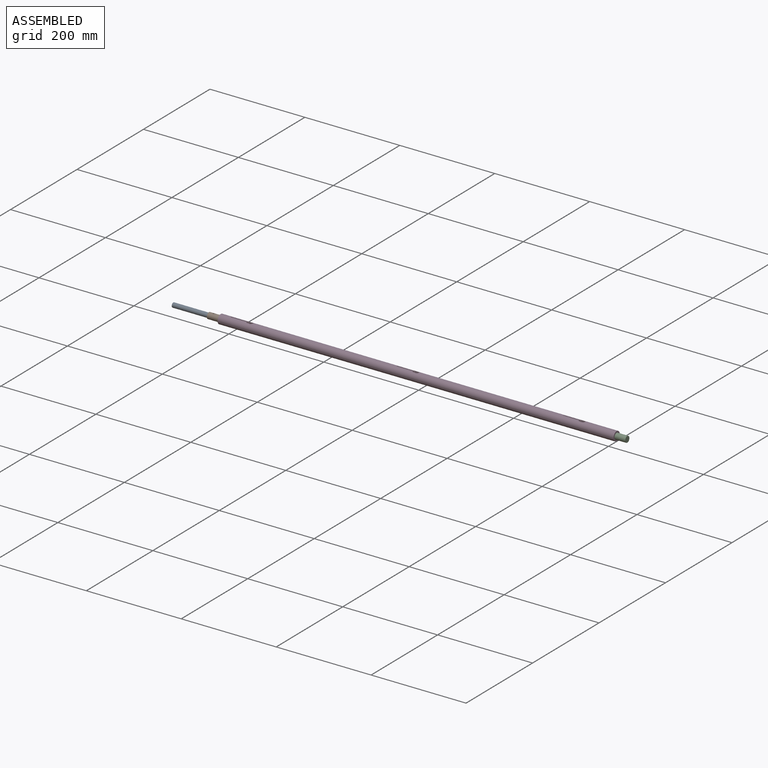
[diagram: assembled view]
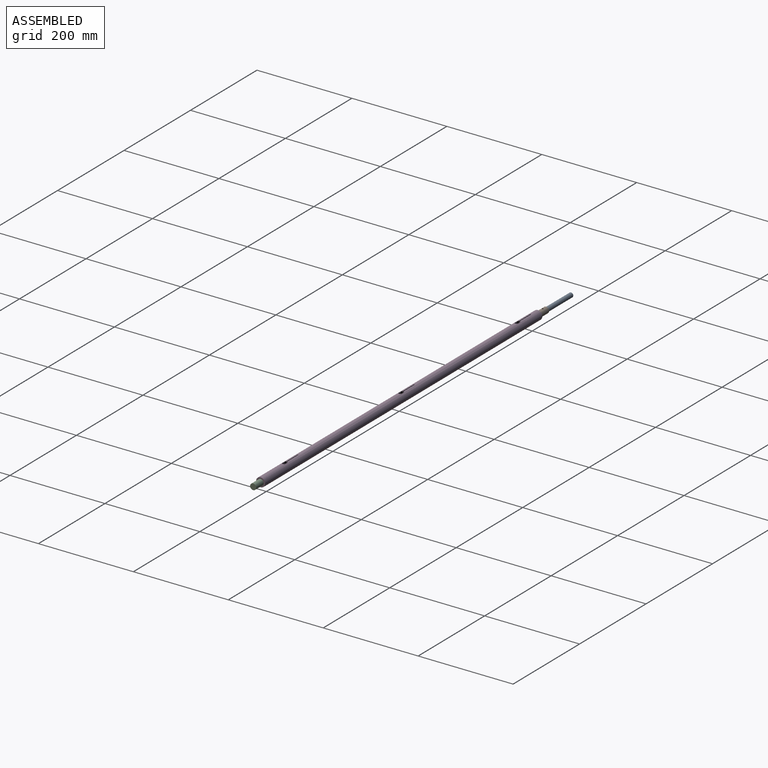
[diagram: assembled view, second angle]
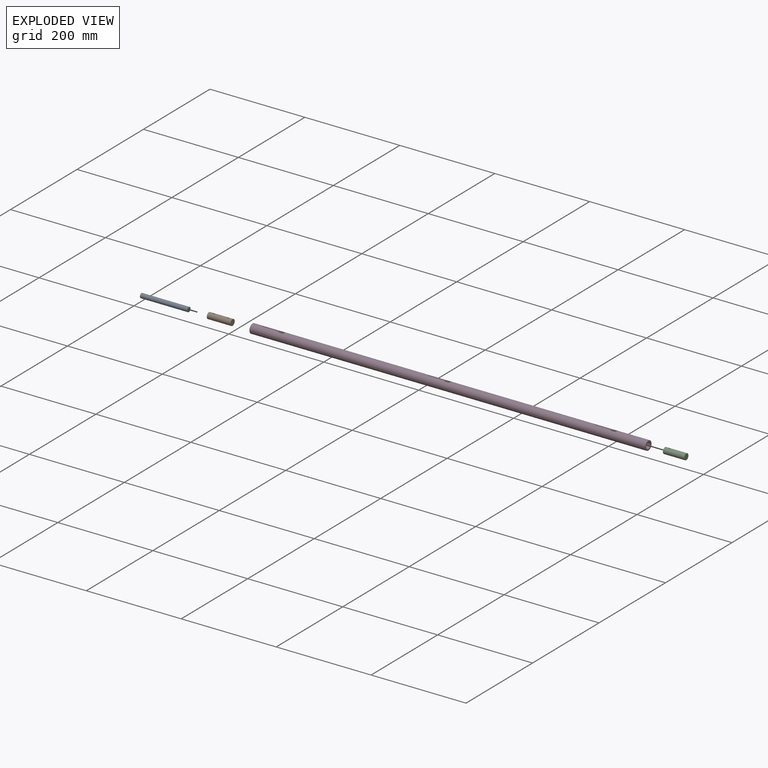
[diagram: exploded view]
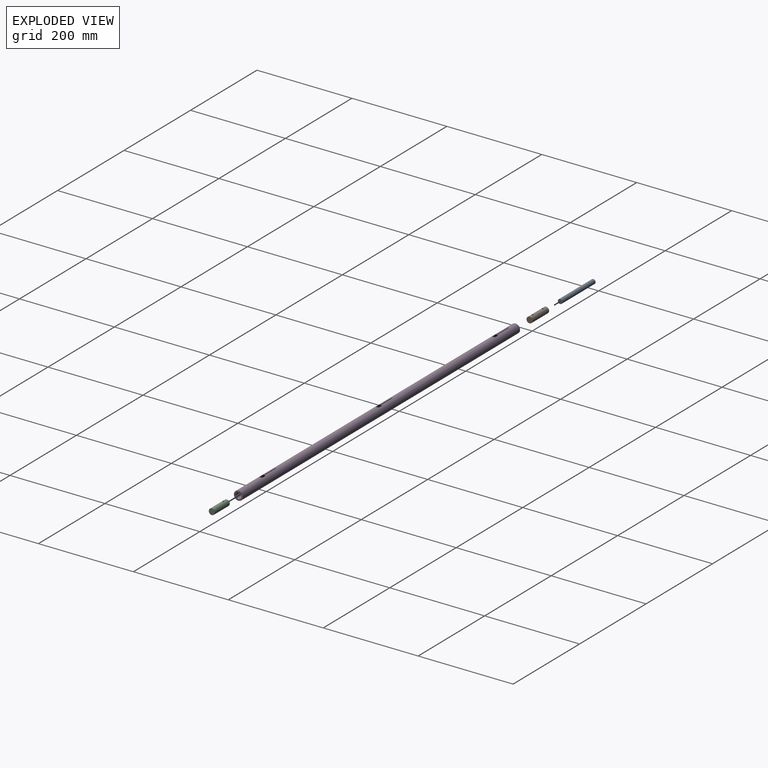
[diagram: exploded view, second angle]
ASSEMBLY  parts=4 mates=3
PART A: 3 faces, bbox 9.5x100x9.5 mm
  f0: cylinder r=4.76mm len=100mm, axis (0,1,0), area 2992.4mm2, adj f1,f2
  f1: plane 9.53x9.53mm, normal (0,-1,0), area 71.3mm2, adj f0
  f2: plane 9.53x9.53mm, normal (0,1,0), area 71.3mm2, adj f0
PART B: 8 faces, bbox 12.7x50x12.7 mm
  f0: cylinder r=1.59mm len=3.18mm, axis (-1,0,0), area 16.2mm2, adj f1,f6
  f1: cylinder r=6.35mm len=50mm, axis (0,1,0), area 1963mm2, adj f0,f2,f3,f4,f5
  f2: plane 12.7x12.7mm, normal (0,-1,0), area 55.4mm2, adj f1,f6
  f3: plane 12.7x12.7mm, normal (0,1,0), area 126.7mm2, adj f1
  f4: cylinder r=1.59mm len=3.18mm, axis (-1,0,0), area 16.2mm2, adj f1,f6
  f5: cylinder r=1.59mm len=12.7mm, axis (-1,0,0), area 124.7mm2, adj f1
  f6: cylinder r=4.76mm len=25mm, axis (0,-1,0), area 732mm2, adj f0,f2,f4,f7
  f7: plane 9.53x9.53mm, normal (0,-1,0), area 71.3mm2, adj f6
PART C: 4 faces, bbox 12.7x45x12.7 mm
  f0: cylinder r=6.35mm len=45mm, axis (0,1,0), area 1779.5mm2, adj f1,f2,f3
  f1: plane 12.7x12.7mm, normal (0,-1,0), area 126.7mm2, adj f0
  f2: plane 12.7x12.7mm, normal (0,1,0), area 126.7mm2, adj f0
  f3: cylinder r=1.59mm len=12.7mm, axis (1,0,0), area 124.7mm2, adj f0
PART D: 52 faces, bbox 19.1x834x19.1 mm
  f0: cylinder r=6.35mm len=834mm, axis (0,1,0), area 32502.5mm2, adj f2,f3,f4,f5,f6,f7,f8,f9
  f1: cylinder r=9.53mm len=834mm, axis (0,1,0), area 49151.1mm2, adj f2,f3,f4,f5,f6,f7,f8,f9
  f2: plane 19.05x19.05mm, normal (0,-1,0), area 158.3mm2, adj f0,f1
  f3: plane 19.05x19.05mm, normal (0,1,0), area 158.3mm2, adj f0,f1
  f4: plane 6.35x3.48mm, normal (-1,0,0), area 22.1mm2, adj f0,f1,f5,f11
  f5: cylinder r=3.17mm len=3.99mm, axis (0,0,-1), area 14mm2, adj f0,f1,f4,f6
  f6: plane 33.85x3.19mm, normal (-1,0,0), area 108mm2, adj f0,f1,f5,f7
  f7: plane 3.23x1.59mm, normal (0,1,0), area 5mm2, adj f0,f1,f6,f8
  f8: plane 33.85x3.19mm, normal (1,0,0), area 108mm2, adj f0,f1,f7,f9
  f9: cylinder r=3.17mm len=3.99mm, axis (0,0,-1), area 14mm2, adj f0,f1,f8,f10
  f10: plane 6.35x3.48mm, normal (1,0,0), area 22.1mm2, adj f0,f1,f9,f11
  f11: cylinder r=3.17mm len=6.35mm, axis (0,0,-1), area 33.1mm2, adj f0,f1,f4,f10
  f12: cylinder r=3.17mm len=6.35mm, axis (0,0,-1), area 33.1mm2, adj f0,f1,f13,f19
  f13: plane 6.35x3.48mm, normal (1,0,0), area 22.1mm2, adj f0,f1,f12,f14
  f14: cylinder r=3.17mm len=3.99mm, axis (0,0,-1), area 14mm2, adj f0,f1,f13,f15
  f15: plane 33.85x3.19mm, normal (1,0,0), area 108mm2, adj f0,f1,f14,f16
  f16: plane 3.23x1.59mm, normal (0,1,0), area 5mm2, adj f0,f1,f15,f17
  f17: plane 33.85x3.19mm, normal (-1,0,0), area 108mm2, adj f0,f1,f16,f18
  f18: cylinder r=3.17mm len=3.99mm, axis (0,0,-1), area 14mm2, adj f0,f1,f17,f19
  f19: plane 6.35x3.48mm, normal (-1,0,0), area 22.1mm2, adj f0,f1,f12,f18
  f20: plane 6.35x3.48mm, normal (-1,0,0), area 22.1mm2, adj f0,f1,f21,f27
  f21: cylinder r=3.17mm len=3.99mm, axis (0,0,-1), area 14mm2, adj f0,f1,f20,f22
  f22: plane 33.85x3.19mm, normal (-1,0,0), area 108mm2, adj f0,f1,f21,f23
  f23: plane 3.23x1.59mm, normal (0,1,0), area 5mm2, adj f0,f1,f22,f24
  f24: plane 33.85x3.19mm, normal (1,0,0), area 108mm2, adj f0,f1,f23,f25
  f25: cylinder r=3.17mm len=3.99mm, axis (0,0,-1), area 14mm2, adj f0,f1,f24,f26
  f26: plane 6.35x3.48mm, normal (1,0,0), area 22.1mm2, adj f0,f1,f25,f27
  f27: cylinder r=3.17mm len=6.35mm, axis (0,0,-1), area 33.1mm2, adj f0,f1,f20,f26
  f28: cylinder r=3.17mm len=6.35mm, axis (0,0,-1), area 33.1mm2, adj f0,f1,f29,f35
  f29: plane 6.35x3.48mm, normal (1,0,0), area 22.1mm2, adj f0,f1,f28,f30
  f30: cylinder r=3.17mm len=3.99mm, axis (0,0,-1), area 14mm2, adj f0,f1,f29,f31
  f31: plane 33.85x3.19mm, normal (1,0,0), area 108mm2, adj f0,f1,f30,f32
  f32: plane 3.23x1.59mm, normal (0,1,0), area 5mm2, adj f0,f1,f31,f33
  f33: plane 33.85x3.19mm, normal (-1,0,0), area 108mm2, adj f0,f1,f32,f34
  f34: cylinder r=3.17mm len=3.99mm, axis (0,0,-1), area 14mm2, adj f0,f1,f33,f35
  f35: plane 6.35x3.48mm, normal (-1,0,0), area 22.1mm2, adj f0,f1,f28,f34
  f36: plane 6.35x3.48mm, normal (-1,0,0), area 22.1mm2, adj f0,f1,f37,f43
  f37: cylinder r=3.17mm len=3.99mm, axis (0,0,-1), area 14mm2, adj f0,f1,f36,f38
  f38: plane 33.85x3.19mm, normal (-1,0,0), area 108mm2, adj f0,f1,f37,f39
  f39: plane 3.23x1.59mm, normal (0,1,0), area 5mm2, adj f0,f1,f38,f40
  f40: plane 33.85x3.19mm, normal (1,0,0), area 108mm2, adj f0,f1,f39,f41
  f41: cylinder r=3.17mm len=3.99mm, axis (0,0,-1), area 14mm2, adj f0,f1,f40,f42
  f42: plane 6.35x3.48mm, normal (1,0,0), area 22.1mm2, adj f0,f1,f41,f43
  f43: cylinder r=3.17mm len=6.35mm, axis (0,0,-1), area 33.1mm2, adj f0,f1,f36,f42
  f44: cylinder r=3.17mm len=6.35mm, axis (0,0,-1), area 33.1mm2, adj f0,f1,f45,f51
  f45: plane 6.35x3.48mm, normal (1,0,0), area 22.1mm2, adj f0,f1,f44,f46
  f46: cylinder r=3.17mm len=3.99mm, axis (0,0,-1), area 14mm2, adj f0,f1,f45,f47
  f47: plane 33.85x3.19mm, normal (1,0,0), area 108mm2, adj f0,f1,f46,f48
  f48: plane 3.23x1.59mm, normal (0,1,0), area 5mm2, adj f0,f1,f47,f49
  f49: plane 33.85x3.19mm, normal (-1,0,0), area 108mm2, adj f0,f1,f48,f50
  f50: cylinder r=3.17mm len=3.99mm, axis (0,0,-1), area 14mm2, adj f0,f1,f49,f51
  f51: plane 6.35x3.48mm, normal (-1,0,0), area 22.1mm2, adj f0,f1,f44,f50
PLACE A rot(axis=(-0.71,0.71,0),180deg) t=(-517,0,0)mm
PLACE B rot(axis=(0.58,0.58,-0.58),120deg) t=(-392,0,0)mm
PLACE C rot(axis=(-0.58,0.58,0.58),120deg) t=(394.5,0,0)mm
PLACE D rot(axis=(0.71,0.71,0),180deg) t=(-29,0,0)mm
MATE fastened B.f1 <-> D.f0  axis (1,0,0) through (-417,0,0)mm
MATE fastened A.f0 <-> B.f6  axis (1,0,0) through (-417,0,0)mm
MATE fastened D.f0 <-> C.f0  axis (1,0,0) through (417,0,0)mm
